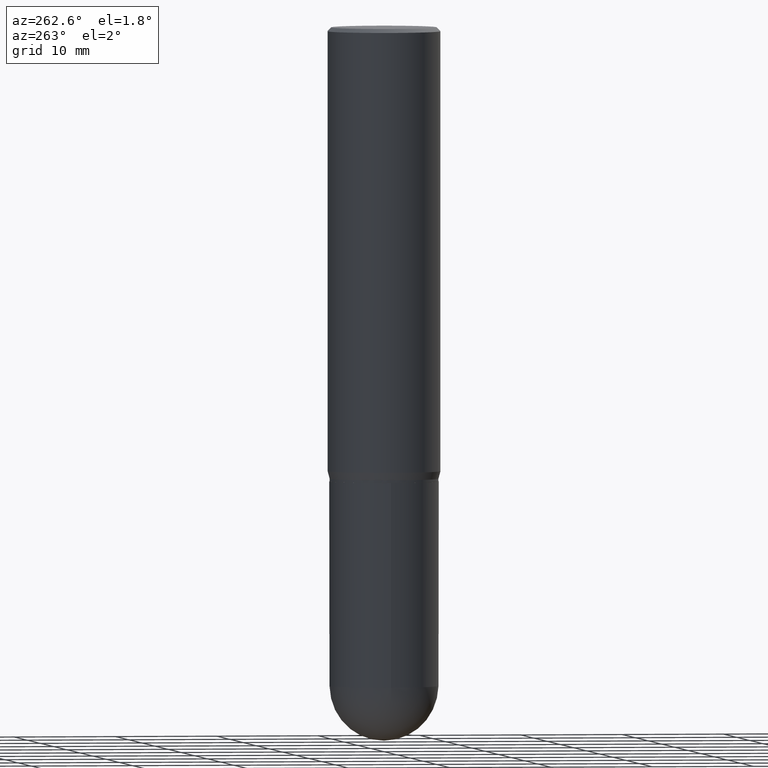
[diagram: clean part render]
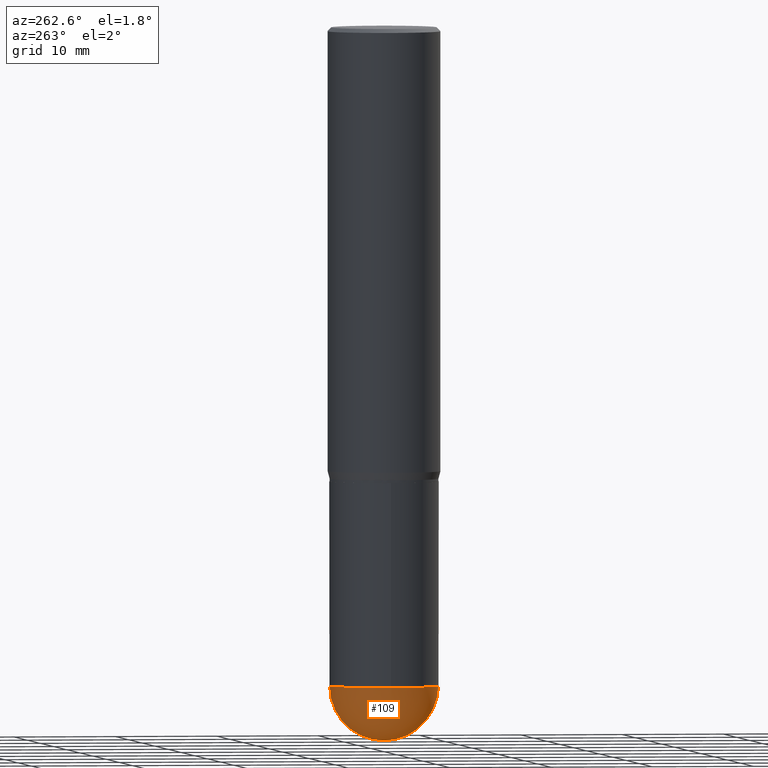
[diagram: same view with one face highlighted and labeled with its STEP entity id]
A machine part, auxiliary view. The second image highlights one B-rep face of the part: STEP entity #109.
In plain terms, the highlighted spherical surface has radius 5.3581 mm.
Its self-contained STEP definition (entity closure, byte-faithful):
#23 = CARTESIAN_POINT ( 'NONE',  ( 1.473055976857980082E-15, 0.2109499999999912001, -2.539050000000000917 ) ) ;
#33 = CIRCLE ( 'NONE', #356, 0.2109500000000001096 ) ;
#34 = DIRECTION ( 'NONE',  ( -1.000000000000000000, 7.105427357601001070E-15, -4.926315508542082329E-29 ) ) ;
#65 = DIRECTION ( 'NONE',  ( 1.000000000000000000, -6.982962677686265133E-15, 0.000000000000000000 ) ) ;
#71 = DIRECTION ( 'NONE',  ( 1.000000000000000000, -6.982962677686265133E-15, 0.000000000000000000 ) ) ;
#99 = AXIS2_PLACEMENT_3D ( 'NONE', #139, #283, #65 ) ;
#109 = ADVANCED_FACE ( 'NONE', ( #234 ), #305, .T. ) ;
#111 = DIRECTION ( 'NONE',  ( -7.105427357601001070E-15, -1.000000000000000000, 0.000000000000000000 ) ) ;
#114 = EDGE_LOOP ( 'NONE', ( #423, #394, #163, #494 ) ) ;
#121 = DIRECTION ( 'NONE',  ( 6.982962677686265133E-15, 1.000000000000000000, -2.590043132177541277E-15 ) ) ;
#135 = DIRECTION ( 'NONE',  ( -2.445468806185136597E-29, 3.491481338843145583E-15, 1.000000000000000000 ) ) ;
#139 = CARTESIAN_POINT ( 'NONE',  ( 6.209167572344372023E-29, -8.865045693389689499E-15, -2.539050000000000473 ) ) ;
#154 = EDGE_CURVE ( 'NONE', #377, #244, #250, .T. ) ;
#163 = ORIENTED_EDGE ( 'NONE', *, *, #252, .F. ) ;
#174 = CIRCLE ( 'NONE', #452, 0.2109500000000000541 ) ;
#214 = VERTEX_POINT ( 'NONE', #408 ) ;
#234 = FACE_OUTER_BOUND ( 'NONE', #114, .T. ) ;
#244 = VERTEX_POINT ( 'NONE', #23 ) ;
#250 = CIRCLE ( 'NONE', #295, 0.2109500000000001096 ) ;
#252 = EDGE_CURVE ( 'NONE', #214, #267, #373, .T. ) ;
#267 = VERTEX_POINT ( 'NONE', #366 ) ;
#275 = CARTESIAN_POINT ( 'NONE',  ( 6.191127839474132236E-29, -8.890879617617701491E-15, -2.539049999999999585 ) ) ;
#283 = DIRECTION ( 'NONE',  ( -2.445468806185136597E-29, 3.491481338843145583E-15, 1.000000000000000000 ) ) ;
#288 = AXIS2_PLACEMENT_3D ( 'NONE', #275, #308, #121 ) ;
#295 = AXIS2_PLACEMENT_3D ( 'NONE', #351, #306, #475 ) ;
#305 = SPHERICAL_SURFACE ( 'NONE', #288, 0.2109500000000001096 ) ;
#306 = DIRECTION ( 'NONE',  ( 1.000000000000000000, -6.982962677686265922E-15, 4.883557194083112340E-29 ) ) ;
#308 = DIRECTION ( 'NONE',  ( -1.000000000000000000, 6.982962677686265133E-15, -4.883557194083112340E-29 ) ) ;
#322 = CARTESIAN_POINT ( 'NONE',  ( 6.209167572344372023E-29, -8.865045693389689499E-15, -2.539050000000000473 ) ) ;
#351 = CARTESIAN_POINT ( 'NONE',  ( 6.191127839474132236E-29, -8.890879617617701491E-15, -2.539049999999999585 ) ) ;
#356 = AXIS2_PLACEMENT_3D ( 'NONE', #374, #34, #111 ) ;
#363 = EDGE_CURVE ( 'NONE', #244, #214, #174, .T. ) ;
#366 = CARTESIAN_POINT ( 'NONE',  ( -1.498889901085869604E-15, -0.2109500000000089637, -2.539049999999999585 ) ) ;
#373 = CIRCLE ( 'NONE', #99, 0.2109500000000000541 ) ;
#374 = CARTESIAN_POINT ( 'NONE',  ( 6.191127839474132236E-29, -8.890879617617701491E-15, -2.539049999999999585 ) ) ;
#377 = VERTEX_POINT ( 'NONE', #461 ) ;
#394 = ORIENTED_EDGE ( 'NONE', *, *, #472, .T. ) ;
#408 = CARTESIAN_POINT ( 'NONE',  ( -0.2109500000000000541, -5.988679117096665555E-15, -2.539050000000000473 ) ) ;
#423 = ORIENTED_EDGE ( 'NONE', *, *, #154, .F. ) ;
#452 = AXIS2_PLACEMENT_3D ( 'NONE', #322, #135, #71 ) ;
#461 = CARTESIAN_POINT ( 'NONE',  ( 6.716019350574006308E-29, -9.614490643932656644E-15, -2.750000000000000000 ) ) ;
#472 = EDGE_CURVE ( 'NONE', #377, #267, #33, .T. ) ;
#475 = DIRECTION ( 'NONE',  ( 6.982962677686265922E-15, 1.000000000000000000, 0.000000000000000000 ) ) ;
#494 = ORIENTED_EDGE ( 'NONE', *, *, #363, .F. ) ;